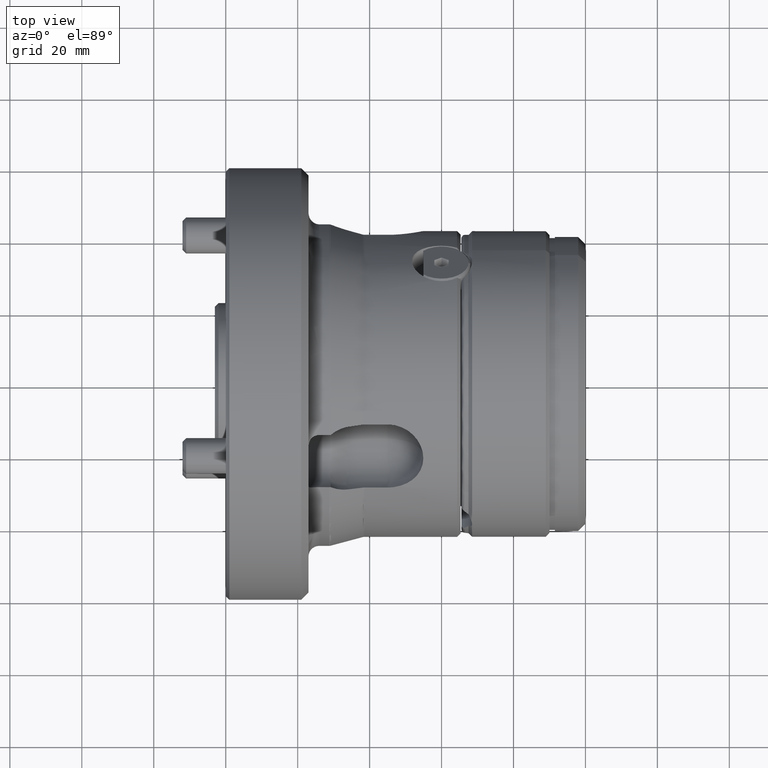
[diagram: clean part render]
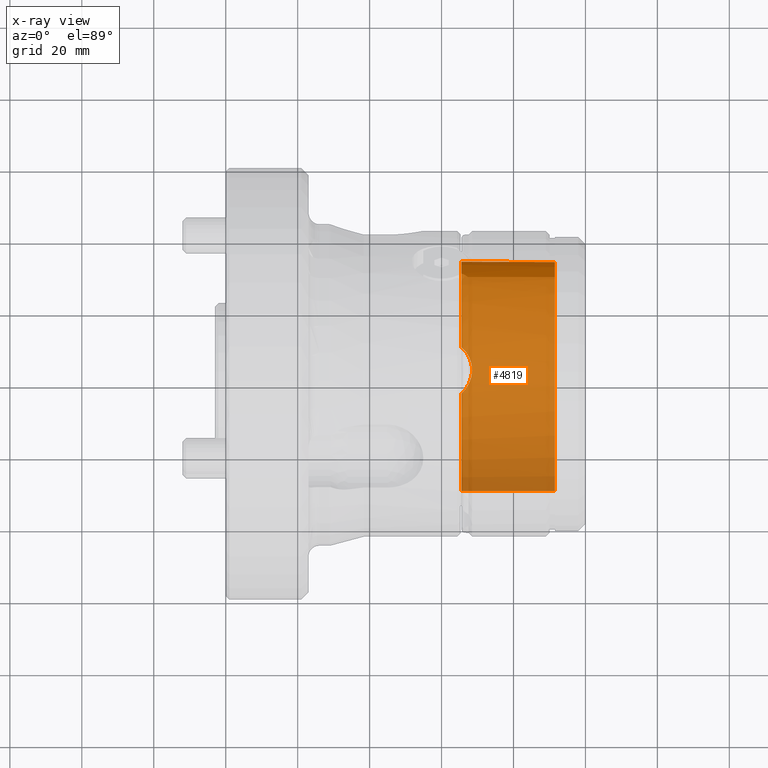
[diagram: x-ray — body ghosted, one internal face saturated and labeled with its STEP entity id]
A machine part, top view, then the same camera in x-ray: the body is ghosted and one INTERNAL B-rep face — a face not visible from any outside direction — is saturated and labeled: STEP entity #4819.
In plain terms, the highlighted cylindrical surface (partial cylindrical patch) has radius 34 mm, axis along (-1, -0, 0).
Its self-contained STEP definition (entity closure, byte-faithful):
#67 = DIRECTION ( 'NONE',  ( -1.000000000000000000, -0.0000000000000000000, -0.0000000000000000000 ) ) ;
#310 = CARTESIAN_POINT ( 'NONE',  ( 2.865460281759778700, 31.96949617327413100, -11.57768850545497900 ) ) ;
#340 = CARTESIAN_POINT ( 'NONE',  ( 1.449087873581435400, 29.20738591712086300, -17.40657445209081500 ) ) ;
#424 = EDGE_CURVE ( 'NONE', #2084, #3712, #4178, .T. ) ;
#449 = CARTESIAN_POINT ( 'NONE',  ( 0.3458947850183852200, 1.770293095654083700, 33.95519817033639500 ) ) ;
#473 = DIRECTION ( 'NONE',  ( -1.000000000000000000, -0.0000000000000000000, -0.0000000000000000000 ) ) ;
#544 = VERTEX_POINT ( 'NONE', #6396 ) ;
#553 = CIRCLE ( 'NONE', #1837, 34.00000000000000000 ) ;
#1028 = CARTESIAN_POINT ( 'NONE',  ( 2.983063498229089100, 31.64462352527831600, -12.43830794664063800 ) ) ;
#1062 = CARTESIAN_POINT ( 'NONE',  ( 0.8822887287184766300, 28.82858428314941100, -18.02675472482057400 ) ) ;
#1159 = ORIENTED_EDGE ( 'NONE', *, *, #2679, .T. ) ;
#1191 = CARTESIAN_POINT ( 'NONE',  ( 0.0000000000000000000, 0.0000000000000000000, 0.0000000000000000000 ) ) ;
#1401 = ORIENTED_EDGE ( 'NONE', *, *, #424, .T. ) ;
#1466 = CARTESIAN_POINT ( 'NONE',  ( 9.184850993605147900E-016, 0.0000000000000000000, 0.0000000000000000000 ) ) ;
#1613 = EDGE_LOOP ( 'NONE', ( #2989, #3754, #1401, #1713, #1159, #2212, #6553 ) ) ;
#1706 = CARTESIAN_POINT ( 'NONE',  ( 9.184850993605147900E-016, 33.31606530268758300, -6.785262909206763600 ) ) ;
#1711 = VECTOR ( 'NONE', #3757, 1000.000000000000000 ) ;
#1713 = ORIENTED_EDGE ( 'NONE', *, *, #1880, .T. ) ;
#1745 = CARTESIAN_POINT ( 'NONE',  ( 3.000184051981788200, 31.29649855016606400, -13.28997059472359000 ) ) ;
#1775 = CARTESIAN_POINT ( 'NONE',  ( 0.2354242374432582400, 28.46822169556309800, -18.59036786621069100 ) ) ;
#1813 = EDGE_CURVE ( 'NONE', #544, #2064, #5523, .T. ) ;
#1837 = AXIS2_PLACEMENT_3D ( 'NONE', #4344, #67, #5063 ) ;
#1880 = EDGE_CURVE ( 'NONE', #3712, #3730, #6822, .T. ) ;
#2012 = CARTESIAN_POINT ( 'NONE',  ( 1.749491540453017100, 3.777633181377323600E-013, 34.00000000000019200 ) ) ;
#2044 = CARTESIAN_POINT ( 'NONE',  ( 9.184850993605147900E-016, 2.068771526051067100, 33.93700317312947600 ) ) ;
#2064 = VERTEX_POINT ( 'NONE', #8468 ) ;
#2084 = VERTEX_POINT ( 'NONE', #5643 ) ;
#2178 = DIRECTION ( 'NONE',  ( 0.0000000000000000000, 0.0000000000000000000, 1.000000000000000000 ) ) ;
#2212 = ORIENTED_EDGE ( 'NONE', *, *, #7434, .T. ) ;
#2435 = CARTESIAN_POINT ( 'NONE',  ( 0.8899478187257221500, 33.13797495659952800, -7.623342471051647500 ) ) ;
#2464 = CARTESIAN_POINT ( 'NONE',  ( 2.917068299599970600, 30.92433224264875200, -14.13436931916880800 ) ) ;
#2679 = EDGE_CURVE ( 'NONE', #3730, #3417, #9182, .T. ) ;
#2928 = VERTEX_POINT ( 'NONE', #7539 ) ;
#2989 = ORIENTED_EDGE ( 'NONE', *, *, #1813, .F. ) ;
#3137 = CARTESIAN_POINT ( 'NONE',  ( 1.616945590165232100, 32.89916392908477100, -8.585802297939663300 ) ) ;
#3173 = CARTESIAN_POINT ( 'NONE',  ( 2.667292286512310100, 30.40478782710508200, -15.22863793642259400 ) ) ;
#3277 = CARTESIAN_POINT ( 'NONE',  ( 1.749491540453017100, 3.777633181377323600E-013, 34.00000000000019200 ) ) ;
#3417 = VERTEX_POINT ( 'NONE', #9192 ) ;
#3705 = CARTESIAN_POINT ( 'NONE',  ( 0.0000000000000000000, 0.0000000000000000000, 34.00000000000000000 ) ) ;
#3712 = VERTEX_POINT ( 'NONE', #2012 ) ;
#3730 = VERTEX_POINT ( 'NONE', #2044 ) ;
#3754 = ORIENTED_EDGE ( 'NONE', *, *, #4629, .F. ) ;
#3757 = DIRECTION ( 'NONE',  ( -1.000000000000000000, -0.0000000000000000000, -0.0000000000000000000 ) ) ;
#3859 = CARTESIAN_POINT ( 'NONE',  ( 2.080897981195231900, 32.68610956325622400, -9.364626108102726200 ) ) ;
#3887 = CARTESIAN_POINT ( 'NONE',  ( 2.082866872257565400, 29.73618793806185000, -16.48751564775085000 ) ) ;
#4020 = DIRECTION ( 'NONE',  ( 0.0000000000000000000, 0.0000000000000000000, 1.000000000000000000 ) ) ;
#4084 = CARTESIAN_POINT ( 'NONE',  ( 9.184850993605147900E-016, 0.0000000000000000000, 0.0000000000000000000 ) ) ;
#4178 = LINE ( 'NONE', #3705, #6090 ) ;
#4344 = CARTESIAN_POINT ( 'NONE',  ( 26.00000000000000000, 0.0000000000000000000, 0.0000000000000000000 ) ) ;
#4469 = FACE_OUTER_BOUND ( 'NONE', #1613, .T. ) ;
#4584 = CARTESIAN_POINT ( 'NONE',  ( 2.664487706183288100, 32.27098352371784500, -10.72146674766387500 ) ) ;
#4612 = CARTESIAN_POINT ( 'NONE',  ( 1.620590959857781500, 29.33720642023375900, -17.18715669429246500 ) ) ;
#4629 = EDGE_CURVE ( 'NONE', #2084, #544, #553, .T. ) ;
#4717 = CARTESIAN_POINT ( 'NONE',  ( 0.6678093300036069800, 1.444204658785398500, 33.97107213080325000 ) ) ;
#4810 = DIRECTION ( 'NONE',  ( 0.0000000000000000000, 0.0000000000000000000, 1.000000000000000000 ) ) ;
#4819 = ADVANCED_FACE ( 'NONE', ( #4469 ), #5626, .F. ) ;
#4865 = EDGE_CURVE ( 'NONE', #2928, #2064, #8757, .T. ) ;
#5016 = AXIS2_PLACEMENT_3D ( 'NONE', #1191, #473, #4020 ) ;
#5063 = DIRECTION ( 'NONE',  ( 0.0000000000000000000, 0.0000000000000000000, 1.000000000000000000 ) ) ;
#5308 = CARTESIAN_POINT ( 'NONE',  ( 2.916112667609970900, 31.86344490070888100, -11.86653199934803400 ) ) ;
#5344 = CARTESIAN_POINT ( 'NONE',  ( 1.079936402015826000, 28.95307614649196300, -17.82637394209066500 ) ) ;
#5449 = CARTESIAN_POINT ( 'NONE',  ( 9.184850993605147900E-016, 2.068771526051067100, 33.93700317312947600 ) ) ;
#5494 = AXIS2_PLACEMENT_3D ( 'NONE', #4084, #9076, #4810 ) ;
#5523 = LINE ( 'NONE', #8057, #1711 ) ;
#5626 = CYLINDRICAL_SURFACE ( 'NONE', #5016, 34.00000000000000000 ) ;
#5643 = CARTESIAN_POINT ( 'NONE',  ( 26.00000000000000000, 0.0000000000000000000, 34.00000000000000000 ) ) ;
#5936 = AXIS2_PLACEMENT_3D ( 'NONE', #1466, #6477, #2178 ) ;
#6029 = CARTESIAN_POINT ( 'NONE',  ( 2.999812837484534500, 31.53124441168017700, -12.72300144462975300 ) ) ;
#6058 = CARTESIAN_POINT ( 'NONE',  ( 0.4602106915145467400, 28.58620210383170200, -18.40869921961835600 ) ) ;
#6090 = VECTOR ( 'NONE', #7999, 1000.000000000000000 ) ;
#6290 = B_SPLINE_CURVE_WITH_KNOTS ( 'NONE', 3,
 ( #1706, #6726, #2435, #7424, #3137, #8151, #3859, #8851, #4584, #310, #5308, #1028, #6029, #1745, #6748, #2464, #7448, #3173, #8172, #3887, #8880, #4612, #340, #5344, #1062, #6058, #1775, #6778 ),
 .UNSPECIFIED., .F., .F.,
 ( 4, 2, 2, 2, 2, 2, 2, 2, 2, 2, 2, 2, 2, 4 ),
 ( 9.613507688558680700E-019, 0.001841068759315466400, 0.002761603138973196700, 0.003682137518630927100, 0.005523206277946388200, 0.006443740657604115100, 0.007364275037261843800, 0.008284809416919572400, 0.009205343796577300200, 0.01104641255589275400, 0.01196694693555048500, 0.01288748131520821600, 0.01380801569486594800, 0.01472855007452367700 ),
 .UNSPECIFIED. ) ;
#6396 = CARTESIAN_POINT ( 'NONE',  ( 26.00000000000000000, 4.163799117101000600E-015, -34.00000000000000000 ) ) ;
#6477 = DIRECTION ( 'NONE',  ( -1.000000000000000000, -0.0000000000000000000, -0.0000000000000000000 ) ) ;
#6553 = ORIENTED_EDGE ( 'NONE', *, *, #4865, .T. ) ;
#6726 = CARTESIAN_POINT ( 'NONE',  ( 0.4708398576401828800, 33.23483176844681000, -7.184124643489902900 ) ) ;
#6748 = CARTESIAN_POINT ( 'NONE',  ( 2.983807464279128600, 31.17513194781683000, -13.57224626731314000 ) ) ;
#6778 = CARTESIAN_POINT ( 'NONE',  ( 9.184850993605147900E-016, 28.35592111321787500, -18.76011028275060300 ) ) ;
#6822 = B_SPLINE_CURVE_WITH_KNOTS ( 'NONE', 3,
 ( #3277, #7556, #8989, #4717, #449, #5449 ),
 .UNSPECIFIED., .F., .F.,
 ( 4, 2, 4 ),
 ( 0.01202357759750342600, 0.01337606383601355100, 0.01472855007452367500 ),
 .UNSPECIFIED. ) ;
#7424 = CARTESIAN_POINT ( 'NONE',  ( 1.444542170672488100, 32.96264370583448100, -8.338123505081943800 ) ) ;
#7434 = EDGE_CURVE ( 'NONE', #3417, #2928, #6290, .T. ) ;
#7448 = CARTESIAN_POINT ( 'NONE',  ( 2.866435444800917500, 30.79489097335339700, -14.41406687898174400 ) ) ;
#7539 = CARTESIAN_POINT ( 'NONE',  ( 9.184850993605147900E-016, 28.35592111321787500, -18.76011028275060300 ) ) ;
#7556 = CARTESIAN_POINT ( 'NONE',  ( 1.514571219181320100, 0.3870641792943396700, 33.99999999999999300 ) ) ;
#7999 = DIRECTION ( 'NONE',  ( -1.000000000000000000, -0.0000000000000000000, -0.0000000000000000000 ) ) ;
#8057 = CARTESIAN_POINT ( 'NONE',  ( 0.0000000000000000000, 4.163799117101000600E-015, -34.00000000000000000 ) ) ;
#8151 = CARTESIAN_POINT ( 'NONE',  ( 1.935995271819270800, 32.76056892309408400, -9.100335827171404500 ) ) ;
#8172 = CARTESIAN_POINT ( 'NONE',  ( 2.471492670170547100, 30.13907207895028500, -15.74650804178801300 ) ) ;
#8468 = CARTESIAN_POINT ( 'NONE',  ( 9.184850993605147900E-016, 4.163799117101000600E-015, -34.00000000000000000 ) ) ;
#8757 = CIRCLE ( 'NONE', #5494, 34.00000000000000000 ) ;
#8851 = CARTESIAN_POINT ( 'NONE',  ( 2.467626899392252800, 32.44876925443368500, -10.16805271305746500 ) ) ;
#8880 = CARTESIAN_POINT ( 'NONE',  ( 1.937109661695780600, 29.60119190706980800, -16.72840319511673000 ) ) ;
#8989 = CARTESIAN_POINT ( 'NONE',  ( 1.251217054835916900, 0.7532804982998996300, 33.99341167496394400 ) ) ;
#9076 = DIRECTION ( 'NONE',  ( -1.000000000000000000, -0.0000000000000000000, -0.0000000000000000000 ) ) ;
#9182 = CIRCLE ( 'NONE', #5936, 34.00000000000000000 ) ;
#9192 = CARTESIAN_POINT ( 'NONE',  ( 9.184850993605147900E-016, 33.31606530268758300, -6.785262909206763600 ) ) ;